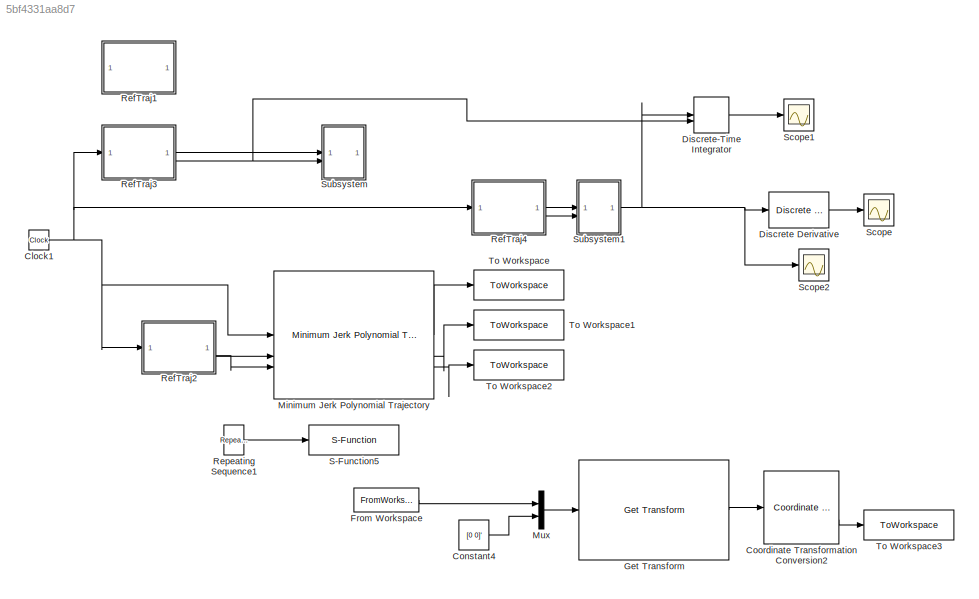
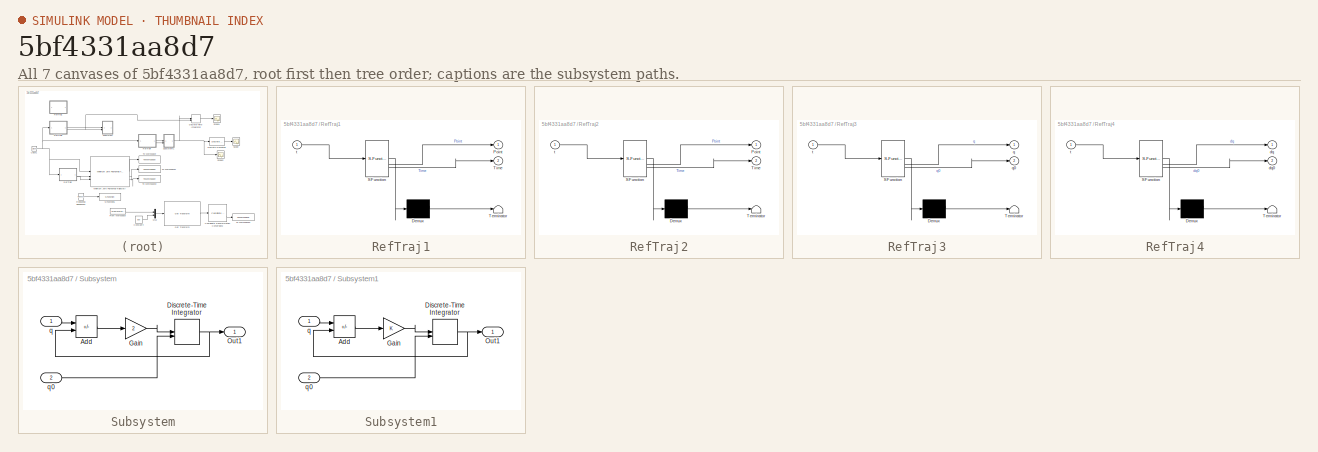
[diagram: thumbnail index - all 7 canvases of the model, root first then tree order]
MODEL mdl_5bf4331aa8d7
KIND model
CONFIG AbsTol = auto
CONFIG EnableMultiTasking = off
CONFIG FixedStep = Ts
CONFIG MaxStep = auto
CONFIG MinStep = auto
CONFIG RelTol = 1e-3
CONFIG SampleTimeConstraint = Unconstrained
CONFIG SolverName = FixedStepDiscrete
CONFIG StartTime = 0.0
CONFIG StopTime = 100
BLOCK [Clock] Clock1
  Commented = on
BLOCK [Constant] Constant4
  Value = [0 0]'
BLOCK [Reference] Coordinate Transformation Conversion2  REF=robotcorelib/Coordinate Transformation Conversion
  SourceBlock = robotcorelib/Coordinate Transformation Conversion
  SourceType = robotics.slcore.internal.block.CoordinateTransformationConversion
BLOCK [Reference] Discrete Derivative  REF=simulink/Discrete/Discrete Derivative
  Commented = on
  SourceBlock = simulink/Discrete/Discrete Derivative
  SourceType = Discrete Derivative
BLOCK [DiscreteIntegrator] Discrete-Time Integrator
  Commented = on
  ICPrevOutput = DiscIntNeverNeededParam
  ICPrevScaledInput = DiscIntNeverNeededParam
  InitialConditionSetting = Auto
  InitialConditionSource = external
  SampleTime = -1
BLOCK [FromWorkspace] From Workspace
  VariableName = traj.qd
BLOCK [Reference] Get Transform  REF=robotmaniplib/Get Transform
  SourceBlock = robotmaniplib/Get Transform
  SourceType = Get Transform
BLOCK [Reference] Minimum Jerk Polynomial Trajectory  REF=shareduavrstlib/Minimum Jerk Polynomial Trajectory
  Commented = on
  SourceBlock = shareduavrstlib/Minimum Jerk Polynomial Trajectory
  SourceType = shared_uav_rst.sluav.internal.system.MinJerkPolyTraj
BLOCK [Mux] Mux
  DisplayOption = bar
  Inputs = 2
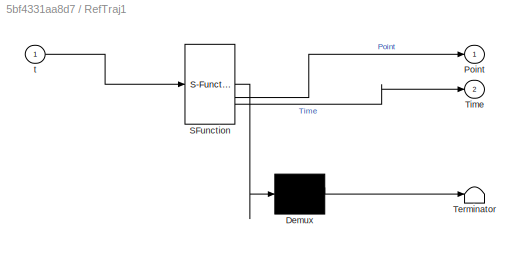
BLOCK [SubSystem] RefTraj1
  Commented = on
  ErrorFcn = Stateflow.Translate.translate
  PermitHierarchicalResolution = ExplicitOnly
  SFBlockType = MATLAB Function
  TreatAsAtomicUnit = on
BLOCK [Demux] RefTraj1/ Demux 
  Outputs = 1
BLOCK [S-Function] RefTraj1/ SFunction 
  EnableBusSupport = on
  FunctionName = sf_sfun
  PortCounts = [1 3]
  SFcnIsStateOwnerBlock = off
  SFunctionDeploymentMode = off
  Tag = Stateflow S-Function 23
BLOCK [Terminator] RefTraj1/ Terminator 
BLOCK [Outport] RefTraj1/Point
BLOCK [Outport] RefTraj1/Time
  Port = 2
BLOCK [Inport] RefTraj1/t
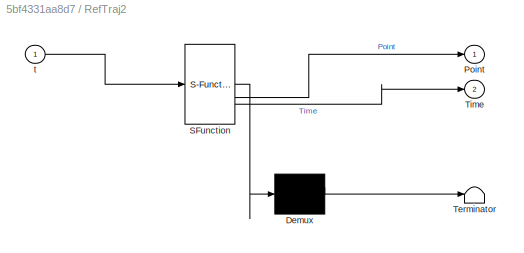
BLOCK [SubSystem] RefTraj2
  Commented = on
  ErrorFcn = Stateflow.Translate.translate
  PermitHierarchicalResolution = ExplicitOnly
  SFBlockType = MATLAB Function
  TreatAsAtomicUnit = on
BLOCK [Demux] RefTraj2/ Demux 
  Outputs = 1
BLOCK [S-Function] RefTraj2/ SFunction 
  EnableBusSupport = on
  FunctionName = sf_sfun
  PortCounts = [1 3]
  SFcnIsStateOwnerBlock = off
  SFunctionDeploymentMode = off
  Tag = Stateflow S-Function 1
BLOCK [Terminator] RefTraj2/ Terminator 
BLOCK [Outport] RefTraj2/Point
BLOCK [Outport] RefTraj2/Time
  Port = 2
BLOCK [Inport] RefTraj2/t
BLOCK [SubSystem] RefTraj3
  Commented = on
  ErrorFcn = Stateflow.Translate.translate
  PermitHierarchicalResolution = ExplicitOnly
  SFBlockType = MATLAB Function
  TreatAsAtomicUnit = on
BLOCK [Demux] RefTraj3/ Demux 
  Outputs = 1
BLOCK [S-Function] RefTraj3/ SFunction 
  EnableBusSupport = on
  FunctionName = sf_sfun
  PortCounts = [1 3]
  SFcnIsStateOwnerBlock = off
  SFunctionDeploymentMode = off
  Tag = Stateflow S-Function 2
BLOCK [Terminator] RefTraj3/ Terminator 
BLOCK [Outport] RefTraj3/q
BLOCK [Outport] RefTraj3/q0
  Port = 2
BLOCK [Inport] RefTraj3/t
BLOCK [SubSystem] RefTraj4
  Commented = on
  ErrorFcn = Stateflow.Translate.translate
  PermitHierarchicalResolution = ExplicitOnly
  SFBlockType = MATLAB Function
  TreatAsAtomicUnit = on
BLOCK [Demux] RefTraj4/ Demux 
  Outputs = 1
BLOCK [S-Function] RefTraj4/ SFunction 
  EnableBusSupport = on
  FunctionName = sf_sfun
  PortCounts = [1 3]
  SFcnIsStateOwnerBlock = off
  SFunctionDeploymentMode = off
  Tag = Stateflow S-Function 3
BLOCK [Terminator] RefTraj4/ Terminator 
BLOCK [Outport] RefTraj4/dq
BLOCK [Outport] RefTraj4/dq0
  Port = 2
BLOCK [Inport] RefTraj4/t
BLOCK [Reference] Repeating Sequence1  REF=simulink/Sources/Repeating
Sequence
  Commented = on
  SourceBlock = simulink/Sources/Repeating\nSequence
  SourceType = Repeating table
BLOCK [S-Function] S-Function5
  Commented = on
  EnableBusSupport = off
  FunctionName = quintic_trajectory
  Parameters = P,T
  SFcnIsStateOwnerBlock = off
  SFunctionDeploymentMode = off
BLOCK [Scope] Scope
  Commented = on
  Floating = off
  NumInputPorts = 1
  ScopeSpecificationString = Simulink.scopes.TimeScopeBlockCfg('CurrentConfiguration', extmgr.ConfigurationSet(extmgr.Configuration('Core','General UI',true),extmgr.Configuration('Core','Source UI',true),extmgr.Configuration('Sources','WiredSimulink',true),extmgr.Configuration('Visuals','Time Domain',true,'SerializedDisplays',{struct('MinYLimReal','-0.07366','MaxYLimReal','0.07365','YLabelReal','','MinYLimMag','0.00000','MaxY...<+1571ch>
BLOCK [Scope] Scope1
  Commented = on
  Floating = off
  NumInputPorts = 1
  ScopeSpecificationString = Simulink.scopes.TimeScopeBlockCfg('CurrentConfiguration', extmgr.ConfigurationSet(extmgr.Configuration('Core','General UI',true),extmgr.Configuration('Core','Source UI',true),extmgr.Configuration('Sources','WiredSimulink',true,'DataLoggingVariableName','ScopeData1'),extmgr.Configuration('Visuals','Time Domain',true,'SerializedDisplays',{struct('MinYLimReal','-2.84375','MaxYLimReal','3.09375','YLab...<+1645ch>
BLOCK [Scope] Scope2
  Commented = on
  Floating = off
  NumInputPorts = 1
  ScopeSpecificationString = Simulink.scopes.TimeScopeBlockCfg('CurrentConfiguration', extmgr.ConfigurationSet(extmgr.Configuration('Core','General UI',true),extmgr.Configuration('Core','Source UI',true),extmgr.Configuration('Sources','WiredSimulink',true,'DataLoggingVariableName','ScopeData2'),extmgr.Configuration('Visuals','Time Domain',true,'SerializedDisplays',{struct('MinYLimReal','-0.125','MaxYLimReal','0.125','YLabelRe...<+1535ch>
BLOCK [SubSystem] Subsystem
  Commented = on
BLOCK [Sum] Subsystem/Add
  IconShape = rectangular
  Inputs = +-
BLOCK [DiscreteIntegrator] Subsystem/Discrete-Time Integrator
  ICPrevOutput = DiscIntNeverNeededParam
  ICPrevScaledInput = DiscIntNeverNeededParam
  InitialConditionSetting = Auto
  InitialConditionSource = external
  SampleTime = -1
BLOCK [Gain] Subsystem/Gain
  Gain = 2
BLOCK [Outport] Subsystem/Out1
BLOCK [Inport] Subsystem/q
BLOCK [Inport] Subsystem/q0
  Port = 2
BLOCK [SubSystem] Subsystem1
  Commented = on
BLOCK [Sum] Subsystem1/Add
  IconShape = rectangular
  Inputs = +-
BLOCK [DiscreteIntegrator] Subsystem1/Discrete-Time Integrator
  ICPrevOutput = DiscIntNeverNeededParam
  ICPrevScaledInput = DiscIntNeverNeededParam
  InitialConditionSetting = Auto
  InitialConditionSource = external
  SampleTime = -1
BLOCK [Gain] Subsystem1/Gain
BLOCK [Outport] Subsystem1/Out1
BLOCK [Inport] Subsystem1/q
BLOCK [Inport] Subsystem1/q0
  Port = 2
BLOCK [ToWorkspace] To Workspace
  Commented = on
  FixptAsFi = on
  MaxDataPoints = inf
  SampleTime = -1
  SaveFormat = Timeseries
  VariableName = qd
BLOCK [ToWorkspace] To Workspace1
  Commented = on
  FixptAsFi = on
  MaxDataPoints = inf
  SampleTime = -1
  SaveFormat = Timeseries
  VariableName = dqd
BLOCK [ToWorkspace] To Workspace2
  Commented = on
  FixptAsFi = on
  MaxDataPoints = inf
  SampleTime = -1
  SaveFormat = Timeseries
  VariableName = ddqd
BLOCK [ToWorkspace] To Workspace3
  FixptAsFi = on
  MaxDataPoints = inf
  SampleTime = -1
  SaveFormat = Timeseries
  VariableName = pose
NET Clock1:1 -> Minimum Jerk Polynomial Trajectory:1, RefTraj2:1, RefTraj3:1, RefTraj4:1
LINE Constant4:1 -> Mux:2
LINE Coordinate Transformation Conversion2:2 -> To Workspace3:1
LINE Discrete Derivative:1 -> Scope:1
LINE Discrete-Time Integrator:1 -> Scope1:1
LINE From Workspace:1 -> Mux:1
LINE Get Transform:1 -> Coordinate Transformation Conversion2:1
LINE Minimum Jerk Polynomial Trajectory:1 -> To Workspace:1
LINE Minimum Jerk Polynomial Trajectory:2 -> To Workspace1:1
LINE Minimum Jerk Polynomial Trajectory:3 -> To Workspace2:1
LINE Mux:1 -> Get Transform:1
LINE RefTraj2:1 -> Minimum Jerk Polynomial Trajectory:2
LINE RefTraj2:2 -> Minimum Jerk Polynomial Trajectory:3
LINE RefTraj3:1 -> Subsystem:1
NET RefTraj3:2 -> Discrete-Time Integrator:2, Subsystem:2
LINE RefTraj4:1 -> Subsystem1:1
LINE RefTraj4:2 -> Subsystem1:2
LINE Repeating Sequence1:1 -> S-Function5:1
LINE Subsystem/Add:1 -> Subsystem/Gain:1
NET Subsystem/Discrete-Time Integrator:1 -> Subsystem/Add:2, Subsystem/Out1:1
LINE Subsystem/Gain:1 -> Subsystem/Discrete-Time Integrator:1
LINE Subsystem/q0:1 -> Subsystem/Discrete-Time Integrator:2
LINE Subsystem/q:1 -> Subsystem/Add:1
LINE Subsystem1/Add:1 -> Subsystem1/Gain:1
NET Subsystem1/Discrete-Time Integrator:1 -> Subsystem1/Add:2, Subsystem1/Out1:1
LINE Subsystem1/Gain:1 -> Subsystem1/Discrete-Time Integrator:1
LINE Subsystem1/q0:1 -> Subsystem1/Discrete-Time Integrator:2
LINE Subsystem1/q:1 -> Subsystem1/Add:1
NET Subsystem1:1 -> Discrete Derivative:1, Discrete-Time Integrator:1, Scope2:1
note: NET lines group one-source signal fan-out (src -> all destinations, sorted); 1:1 wires keep LINE
CHART RefTraj2 states=1 transitions=1
  STATE_LABEL 'eML_blk_kernel()'
  STATE_LABEL "SCRIPT:\nfunction [Point,Time] = fcn(t)\n\nq0=[0.0,  -0.6, -0.00,-2.25, 0.00, 1.5, 0.80]';\nq1=[-0.75, 0.25, 0,   -1.3, -1.2,  0.85,-1.3]';\nq2=[1.5,   0.6, -0.83,-0.8,  1.04, 1.6,-1.0]';\nq3=[0.25, -0.55, 0.3, -1.75, 0.25, 1.25,0.5]';\nq4=[-1.2, -0.84,-0.85,-1.0,  1.07, 2.55,1.05]';\nq5=[-2.25,-1.2,  2.23,-0.63,-0.54, 2.07, 1.50]';\nq6=[-0.25,-0.56,-0.23,-1.33,-0.24, 2.0, 0.5]';\nq7=[0.25,-0.55,0.3,-1.75,1...<+877ch>"
CHART RefTraj3 states=1 transitions=1
  STATE_LABEL 'eML_blk_kernel()'
  STATE_LABEL "SCRIPT:\nfunction [q,q0] = fcn(t)\n\nq0=[0.0,  -0.6, -0.00,-2.25, 0.00, 1.5, 0.80]';\n% q1=[0.2, -0.8, -0.3,   -2.05, 0.2,  1.3,0.6]';\n% q2=[0.4, -1, -0.5,   -1.9,  0.5, 1.2, 0.4]';\n% q3=[0.6, -1.2, 0.8, -1.7, 0.7, 1.05,0.2]';\nif t<=5\n    q=q0;\nelseif t<=25\n    q=0.05*tanh(t-15)+q0;\nelseif t<=30\n    q=q0+1;\nelseif t<=50\n    q=-0.05*tanh(t-40)+q0+1;\nelse\n    q=q0;\nend\n\n\n\n"
CHART RefTraj4 states=1 transitions=1
  STATE_LABEL 'eML_blk_kernel()'
  STATE_LABEL "SCRIPT:\nfunction [dq,dq0] = fcn(t)\n\ndq0=zeros(7,1);v=0.1;\n% q1=[0.2, -0.8, -0.3,   -2.05, 0.2,  1.3,0.6]';\n% q2=[0.4, -1, -0.5,   -1.9,  0.5, 1.2, 0.4]';\n% q3=[0.6, -1.2, 0.8, -1.7, 0.7, 1.05,0.2]';\nif t<=9\n    dq=dq0;\nelseif t<=10\n    dq=v*tanh(t-9)/tanh(1)*ones(7,1)+dq0;\nelseif t<20\n    dq=v*ones(7,1);\nelseif t<21\n    dq=-v*tanh(t-20)/tanh(1)*ones(7,1)+v*ones(7,1);\nelseif t<29\n    dq=dq0;\nelseif...<+172ch>"
CHART RefTraj1 states=1 transitions=1
  STATE_LABEL 'eML_blk_kernel()'
  STATE_LABEL "SCRIPT:\nfunction [Point,Time] = fcn(t)\n\nq0=[0.0,  -0.6, -0.00,-2.25, 0.00, 1.5, 0.80]';\n% q1=[0.2, -0.8, -0.3,   -2.05, 0.2,  1.3,0.6]';\n% q2=[0.4, -1, -0.5,   -1.9,  0.5, 1.2, 0.4]';\n% q3=[0.6, -1.2, 0.8, -1.7, 0.7, 1.05,0.2]';\n\nif t<10\n    \n\n\nq = [q0,q1,q2,q3,q2,q1,q0];\nT = [0,3,6,9,12,15,18,...\n    20,23,26,29,32,35,38,...\n    40,43,46,49,52,55,58];\n\nif t<20\n    Point=q;\n    Time=T(1:7);\nelseif...<+80ch>"
CHART  states=0 transitions=0
CHART  states=0 transitions=0
CHART  states=0 transitions=0
CHART  states=0 transitions=0
